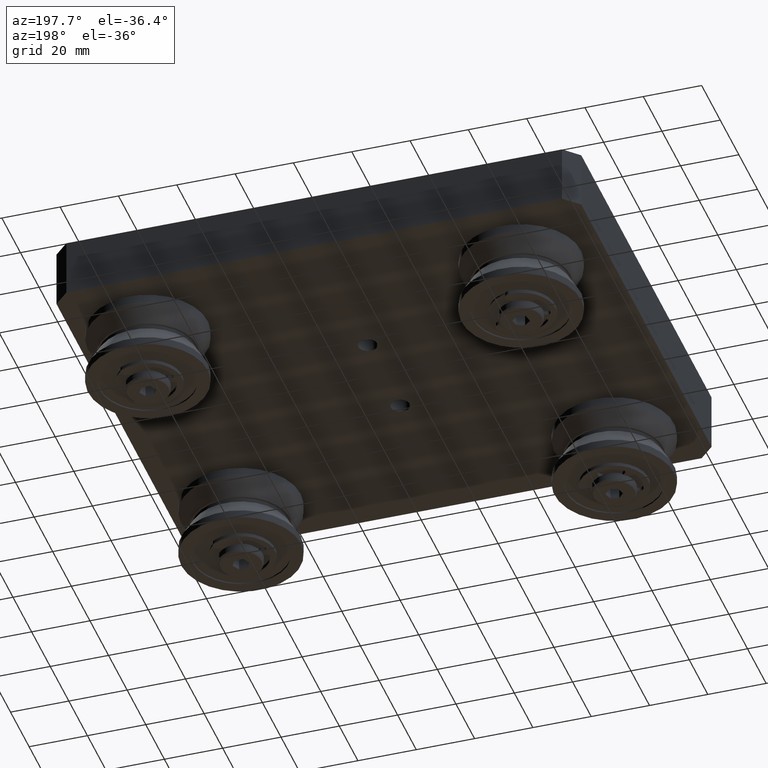
[diagram: clean part render]
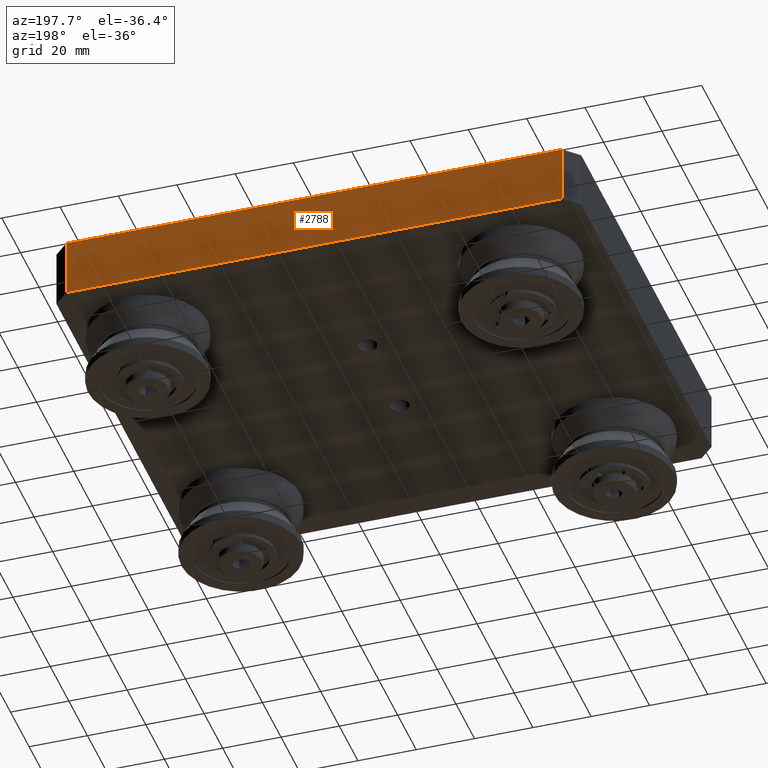
[diagram: same view with one face highlighted and labeled with its STEP entity id]
A machine part, auxiliary view. The second image highlights one B-rep face of the part: STEP entity #2788.
In plain terms, the highlighted planar face has unit normal (0, 1, 0).
Its self-contained STEP definition (entity closure, byte-faithful):
#449=FACE_OUTER_BOUND('',#642,.T.);
#642=EDGE_LOOP('',(#1986,#1987,#1988,#1989));
#826=LINE('',#4448,#1039);
#832=LINE('',#4460,#1045);
#840=LINE('',#4487,#1053);
#860=LINE('',#4569,#1073);
#1039=VECTOR('',#3519,10.);
#1045=VECTOR('',#3529,10.);
#1053=VECTOR('',#3551,10.);
#1073=VECTOR('',#3653,10.);
#1252=VERTEX_POINT('',#4445);
#1253=VERTEX_POINT('',#4447);
#1257=VERTEX_POINT('',#4459);
#1268=VERTEX_POINT('',#4483);
#1496=EDGE_CURVE('',#1252,#1253,#826,.T.);
#1502=EDGE_CURVE('',#1253,#1257,#832,.T.);
#1516=EDGE_CURVE('',#1257,#1268,#840,.T.);
#1554=EDGE_CURVE('',#1252,#1268,#860,.T.);
#1986=ORIENTED_EDGE('',*,*,#1496,.F.);
#1987=ORIENTED_EDGE('',*,*,#1554,.T.);
#1988=ORIENTED_EDGE('',*,*,#1516,.F.);
#1989=ORIENTED_EDGE('',*,*,#1502,.F.);
#2676=PLANE('',#3206);
#2788=ADVANCED_FACE('',(#449),#2676,.T.);
#3206=AXIS2_PLACEMENT_3D('',#4568,#3651,#3652);
#3519=DIRECTION('',(0.,0.,-1.));
#3529=DIRECTION('',(1.,0.,0.));
#3551=DIRECTION('',(0.,0.,1.));
#3651=DIRECTION('center_axis',(0.,1.,0.));
#3652=DIRECTION('ref_axis',(0.,0.,1.));
#3653=DIRECTION('',(1.,0.,0.));
#4445=CARTESIAN_POINT('',(-85.,75.,20.));
#4447=CARTESIAN_POINT('',(-85.,75.,0.));
#4448=CARTESIAN_POINT('',(-85.,75.,0.));
#4459=CARTESIAN_POINT('',(85.,75.,0.));
#4460=CARTESIAN_POINT('',(-90.,75.,0.));
#4483=CARTESIAN_POINT('',(85.,75.,20.));
#4487=CARTESIAN_POINT('',(85.,75.,0.));
#4568=CARTESIAN_POINT('Origin',(-90.,75.,0.));
#4569=CARTESIAN_POINT('',(-90.,75.,20.));